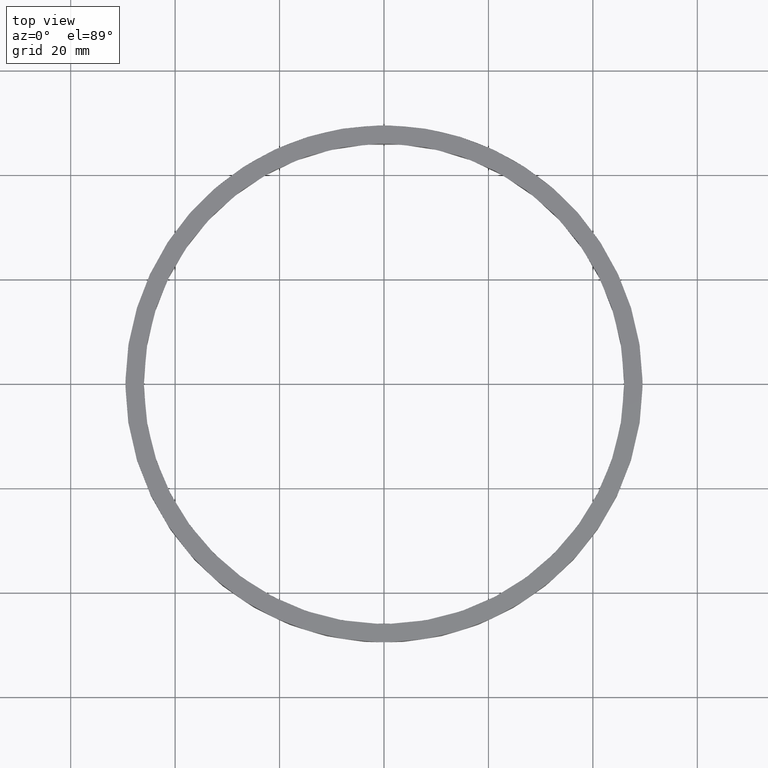
[diagram: clean part render]
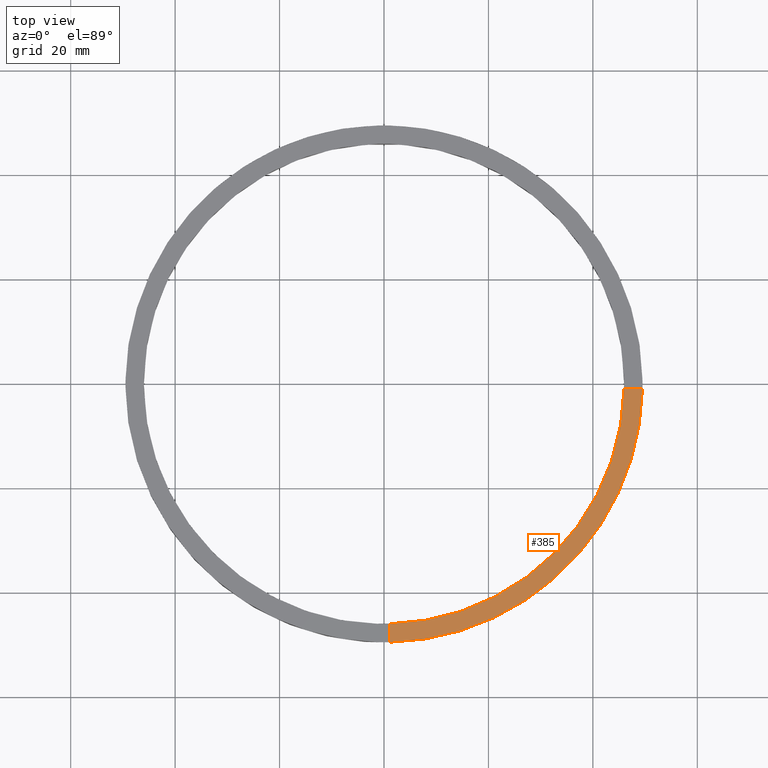
[diagram: same view with one face highlighted and labeled with its STEP entity id]
A machine part, top view. The second image highlights one B-rep face of the part: STEP entity #385.
In plain terms, the highlighted planar face has unit normal (0, 0, 1).
Its self-contained STEP definition (entity closure, byte-faithful):
#11 = DIRECTION ( 'NONE',  ( 0.000000000000000000, 0.000000000000000000, 1.000000000000000000 ) ) ;
#39 = EDGE_LOOP ( 'NONE', ( #538, #625, #248, #490 ) ) ;
#43 = CARTESIAN_POINT ( 'NONE',  ( 39.50000000000000000, -1.000000000000155875, 4.500000000000000000 ) ) ;
#80 = PLANE ( 'NONE',  #95 ) ;
#88 = DIRECTION ( 'NONE',  ( 1.000000000000000000, 6.505213034913025371E-17, 0.000000000000000000 ) ) ;
#95 = AXIS2_PLACEMENT_3D ( 'NONE', #230, #312, #337 ) ;
#110 = AXIS2_PLACEMENT_3D ( 'NONE', #711, #11, #596 ) ;
#126 = EDGE_CURVE ( 'NONE', #687, #504, #449, .T. ) ;
#138 = CARTESIAN_POINT ( 'NONE',  ( 45.98912915026767223, -1.000000000000155431, 4.500000000000000000 ) ) ;
#154 = CARTESIAN_POINT ( 'NONE',  ( 0.9999999999998416822, -39.50000000000018474, 4.500000000000000000 ) ) ;
#204 = VECTOR ( 'NONE', #88, 1000.000000000000000 ) ;
#230 = CARTESIAN_POINT ( 'NONE',  ( 0.000000000000000000, 0.000000000000000000, 4.500000000000000000 ) ) ;
#248 = ORIENTED_EDGE ( 'NONE', *, *, #607, .F. ) ;
#304 = DIRECTION ( 'NONE',  ( -1.301042606982605074E-16, 1.000000000000000000, -0.000000000000000000 ) ) ;
#312 = DIRECTION ( 'NONE',  ( 0.000000000000000000, 0.000000000000000000, 1.000000000000000000 ) ) ;
#337 = DIRECTION ( 'NONE',  ( 1.000000000000000000, 0.000000000000000000, -0.000000000000000000 ) ) ;
#338 = CARTESIAN_POINT ( 'NONE',  ( 0.9999999999998425704, -45.98912915026767934, 4.500000000000000000 ) ) ;
#364 = VERTEX_POINT ( 'NONE', #138 ) ;
#385 = ADVANCED_FACE ( 'NONE', ( #414 ), #80, .T. ) ;
#414 = FACE_OUTER_BOUND ( 'NONE', #39, .T. ) ;
#427 = LINE ( 'NONE', #43, #204 ) ;
#449 = CIRCLE ( 'NONE', #110, 49.50000000000000711 ) ;
#474 = EDGE_CURVE ( 'NONE', #661, #364, #716, .T. ) ;
#490 = ORIENTED_EDGE ( 'NONE', *, *, #126, .T. ) ;
#504 = VERTEX_POINT ( 'NONE', #606 ) ;
#538 = ORIENTED_EDGE ( 'NONE', *, *, #555, .F. ) ;
#555 = EDGE_CURVE ( 'NONE', #364, #504, #427, .T. ) ;
#587 = AXIS2_PLACEMENT_3D ( 'NONE', #600, #735, #592 ) ;
#592 = DIRECTION ( 'NONE',  ( 1.000000000000000000, 0.000000000000000000, 0.000000000000000000 ) ) ;
#596 = DIRECTION ( 'NONE',  ( 1.000000000000000000, 0.000000000000000000, 0.000000000000000000 ) ) ;
#600 = CARTESIAN_POINT ( 'NONE',  ( 0.000000000000000000, 0.000000000000000000, 4.500000000000000000 ) ) ;
#606 = CARTESIAN_POINT ( 'NONE',  ( 49.48989795907849043, -1.000000000000155209, 4.500000000000000000 ) ) ;
#607 = EDGE_CURVE ( 'NONE', #687, #661, #718, .T. ) ;
#625 = ORIENTED_EDGE ( 'NONE', *, *, #474, .F. ) ;
#661 = VERTEX_POINT ( 'NONE', #338 ) ;
#687 = VERTEX_POINT ( 'NONE', #697 ) ;
#695 = VECTOR ( 'NONE', #304, 1000.000000000000000 ) ;
#697 = CARTESIAN_POINT ( 'NONE',  ( 0.9999999999998430145, -49.48989795907849043, 4.500000000000000000 ) ) ;
#711 = CARTESIAN_POINT ( 'NONE',  ( 0.000000000000000000, 0.000000000000000000, 4.500000000000000000 ) ) ;
#716 = CIRCLE ( 'NONE', #587, 46.00000000000000000 ) ;
#718 = LINE ( 'NONE', #154, #695 ) ;
#735 = DIRECTION ( 'NONE',  ( 0.000000000000000000, 0.000000000000000000, 1.000000000000000000 ) ) ;